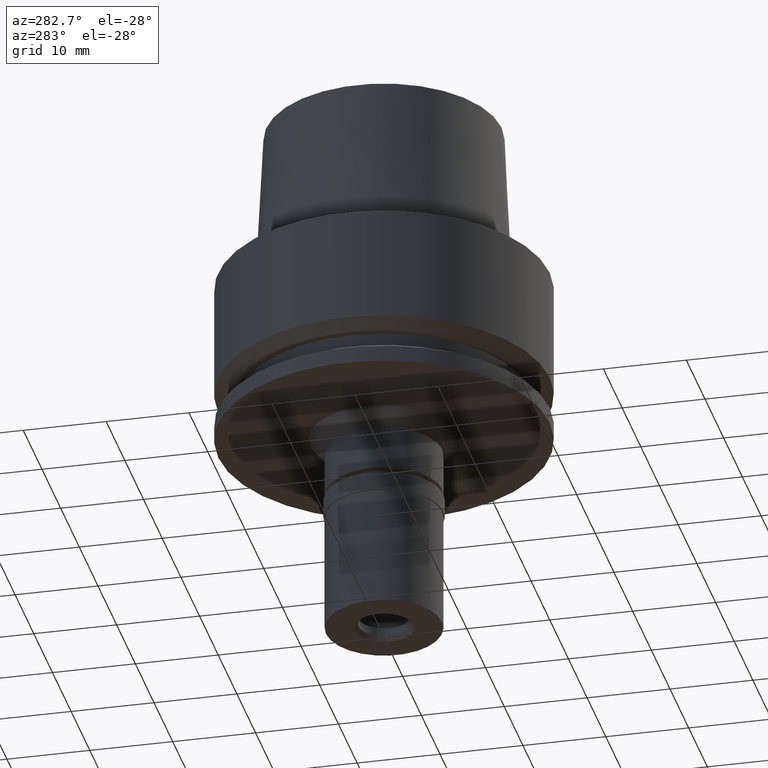
[diagram: clean part render]
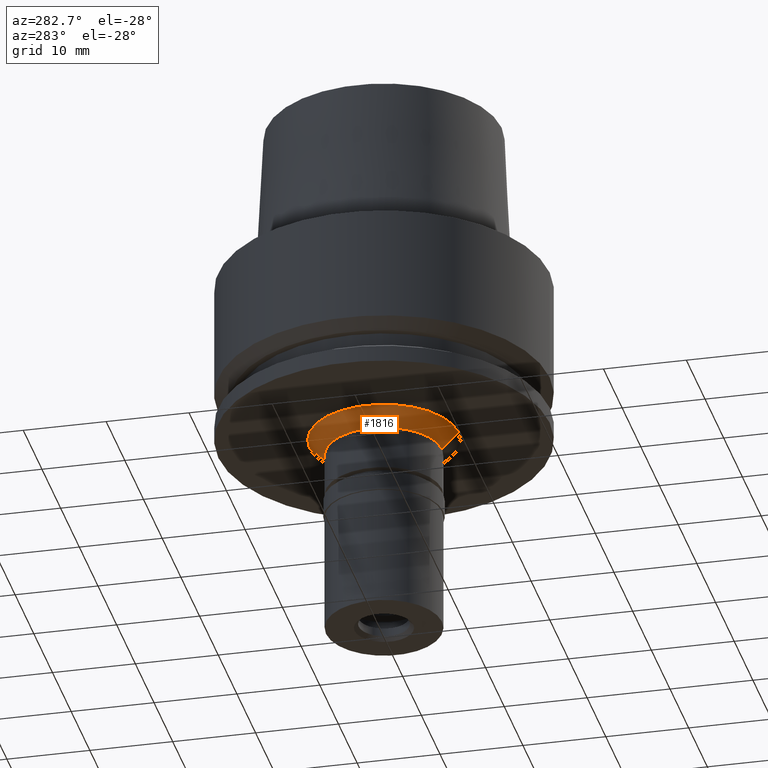
[diagram: same view with one face highlighted and labeled with its STEP entity id]
A machine part, auxiliary view. The second image highlights one B-rep face of the part: STEP entity #1816.
In plain terms, the highlighted conical surface has half-angle 45 deg.
Its self-contained STEP definition (entity closure, byte-faithful):
#32 = DIRECTION ( 'NONE',  ( 0.0000000000000000000, 0.0000000000000000000, -1.000000000000000000 ) ) ;
#44 = EDGE_CURVE ( 'NONE', #1153, #1011, #947, .T. ) ;
#48 = ORIENTED_EDGE ( 'NONE', *, *, #1245, .F. ) ;
#59 = CONICAL_SURFACE ( 'NONE', #1509, 8.000000000000000000, 0.7853981633972997312 ) ;
#194 = CARTESIAN_POINT ( 'NONE',  ( 0.0000000000000000000, 7.000000000000000000, -22.00000000000000000 ) ) ;
#348 = CARTESIAN_POINT ( 'NONE',  ( 0.0000000000000000000, -9.000000000000000000, -20.00000000000000000 ) ) ;
#389 = ORIENTED_EDGE ( 'NONE', *, *, #44, .F. ) ;
#494 = EDGE_CURVE ( 'NONE', #743, #1011, #901, .T. ) ;
#535 = CARTESIAN_POINT ( 'NONE',  ( 0.0000000000000000000, 9.000000000000000000, -20.00000000000000000 ) ) ;
#550 = VECTOR ( 'NONE', #738, 1000.000000000000114 ) ;
#601 = CIRCLE ( 'NONE', #2457, 9.000000000000000000 ) ;
#668 = CARTESIAN_POINT ( 'NONE',  ( 0.0000000000000000000, -7.000000000000000000, -22.00000000000000000 ) ) ;
#693 = CARTESIAN_POINT ( 'NONE',  ( 0.0000000000000000000, 9.000000000000000000, -20.00000000000000000 ) ) ;
#738 = DIRECTION ( 'NONE',  ( 0.0000000000000000000, 0.7071067811865474617, -0.7071067811865474617 ) ) ;
#743 = VERTEX_POINT ( 'NONE', #535 ) ;
#808 = EDGE_LOOP ( 'NONE', ( #389, #48, #2061, #1397 ) ) ;
#883 = CARTESIAN_POINT ( 'NONE',  ( 0.0000000000000000000, 0.0000000000000000000, -20.00000000000000000 ) ) ;
#901 = LINE ( 'NONE', #693, #2291 ) ;
#947 = CIRCLE ( 'NONE', #1166, 7.000000000000000000 ) ;
#1005 = CARTESIAN_POINT ( 'NONE',  ( 0.0000000000000000000, 0.0000000000000000000, -22.00000000000000000 ) ) ;
#1011 = VERTEX_POINT ( 'NONE', #194 ) ;
#1108 = EDGE_CURVE ( 'NONE', #1315, #743, #601, .T. ) ;
#1153 = VERTEX_POINT ( 'NONE', #668 ) ;
#1166 = AXIS2_PLACEMENT_3D ( 'NONE', #1005, #1826, #1395 ) ;
#1245 = EDGE_CURVE ( 'NONE', #1315, #1153, #2587, .T. ) ;
#1281 = CARTESIAN_POINT ( 'NONE',  ( 0.0000000000000000000, -9.000000000000000000, -20.00000000000000000 ) ) ;
#1315 = VERTEX_POINT ( 'NONE', #1281 ) ;
#1380 = CARTESIAN_POINT ( 'NONE',  ( 0.0000000000000000000, 0.0000000000000000000, -21.00000000000000000 ) ) ;
#1395 = DIRECTION ( 'NONE',  ( 0.0000000000000000000, -1.000000000000000000, 0.0000000000000000000 ) ) ;
#1397 = ORIENTED_EDGE ( 'NONE', *, *, #494, .T. ) ;
#1422 = DIRECTION ( 'NONE',  ( 0.0000000000000000000, -1.000000000000000000, 0.0000000000000000000 ) ) ;
#1509 = AXIS2_PLACEMENT_3D ( 'NONE', #1380, #2197, #2000 ) ;
#1816 = ADVANCED_FACE ( 'NONE', ( #2401 ), #59, .T. ) ;
#1826 = DIRECTION ( 'NONE',  ( 0.0000000000000000000, 0.0000000000000000000, -1.000000000000000000 ) ) ;
#2000 = DIRECTION ( 'NONE',  ( 0.0000000000000000000, 1.000000000000000000, 0.0000000000000000000 ) ) ;
#2061 = ORIENTED_EDGE ( 'NONE', *, *, #1108, .T. ) ;
#2197 = DIRECTION ( 'NONE',  ( 0.0000000000000000000, 0.0000000000000000000, 1.000000000000000000 ) ) ;
#2291 = VECTOR ( 'NONE', #2345, 1000.000000000000114 ) ;
#2345 = DIRECTION ( 'NONE',  ( 0.0000000000000000000, -0.7071067811865474617, -0.7071067811865474617 ) ) ;
#2401 = FACE_OUTER_BOUND ( 'NONE', #808, .T. ) ;
#2457 = AXIS2_PLACEMENT_3D ( 'NONE', #883, #32, #1422 ) ;
#2587 = LINE ( 'NONE', #348, #550 ) ;